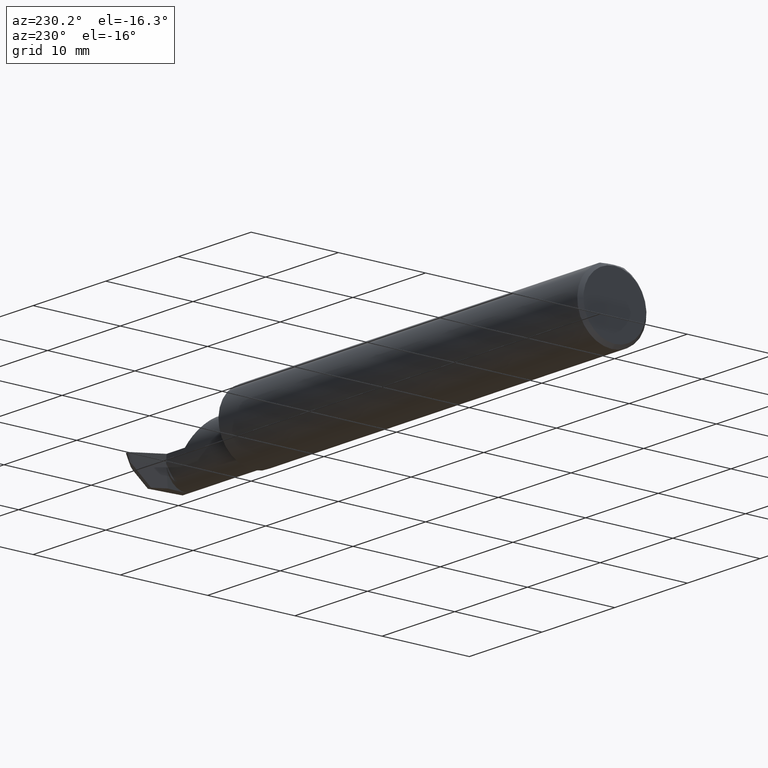
[diagram: clean part render]
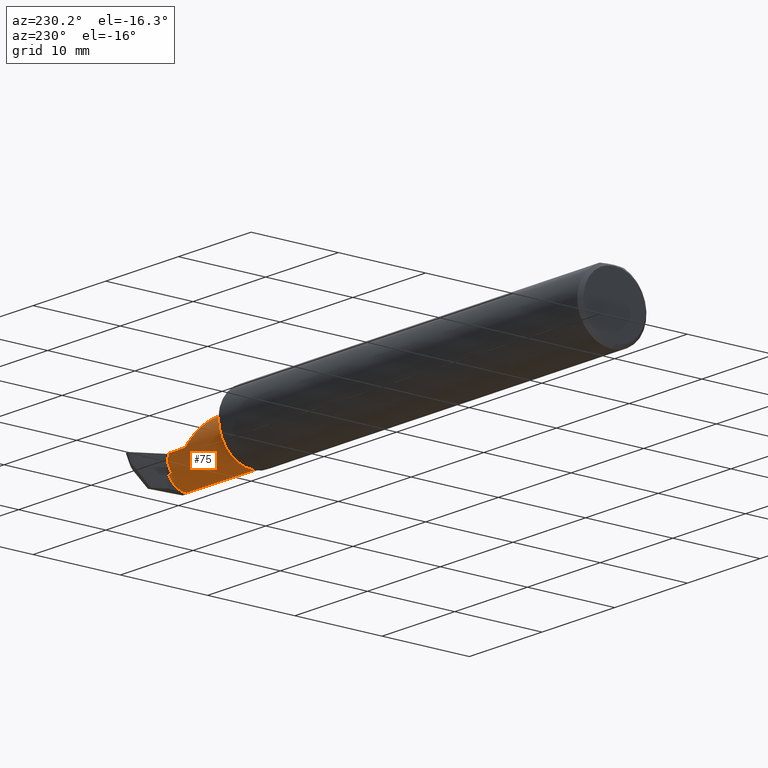
[diagram: same view with one face highlighted and labeled with its STEP entity id]
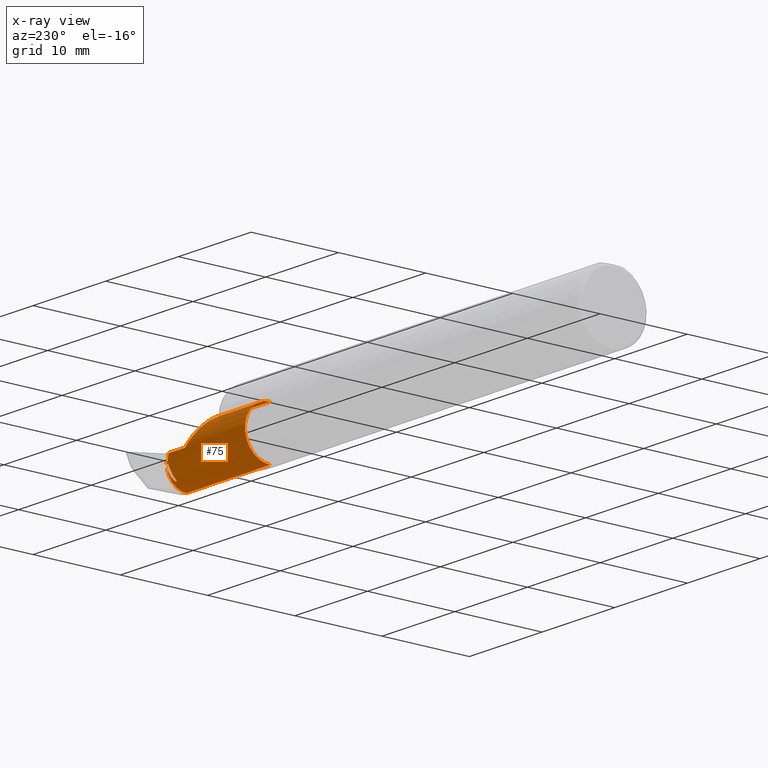
[diagram: x-ray of the same camera — body ghosted, the highlighted face saturated]
A machine part, auxiliary view. The second image highlights one B-rep face of the part: STEP entity #75.
The next image is the same camera in x-ray: the body ghosted, the highlighted face saturated — about 6% of this face is hidden behind the body in this view.
In plain terms, the highlighted cylindrical surface (edge-blend (fillet) strip) has radius 2.8931 mm, axis along (-1, -0, -0).
Its self-contained STEP definition (entity closure, byte-faithful):
#4 = DIRECTION ( 'NONE',  ( -1.000000000000000000, -0.000000000000000000, -0.000000000000000000 ) ) ;
#8 = VERTEX_POINT ( 'NONE', #742 ) ;
#13 = VERTEX_POINT ( 'NONE', #40 ) ;
#14 = EDGE_CURVE ( 'NONE', #277, #147, #582, .T. ) ;
#20 = VERTEX_POINT ( 'NONE', #122 ) ;
#24 =( BOUNDED_CURVE ( )  B_SPLINE_CURVE ( 3, ( #294, #905, #821, #698 ),
 .UNSPECIFIED., .F., .T. ) 
 B_SPLINE_CURVE_WITH_KNOTS ( ( 4, 4 ),
 ( 3.280742988484872225, 4.548410881397165539 ),
 .UNSPECIFIED. ) 
 CURVE ( )  GEOMETRIC_REPRESENTATION_ITEM ( )  RATIONAL_B_SPLINE_CURVE ( ( 1.000000000000000000, 0.8705085504928260498, 0.8705085504928260498, 1.000000000000000000 ) ) 
 REPRESENTATION_ITEM ( '' )  );
#40 = CARTESIAN_POINT ( 'NONE',  ( 1.983566166913449225, -0.09809999999999997888, 0.1139000000000000151 ) ) ;
#73 = EDGE_LOOP ( 'NONE', ( #98, #944, #1014, #709, #921, #668, #902, #93, #972, #239, #549, #178, #634, #945 ) ) ;
#75 = ADVANCED_FACE ( 'NONE', ( #1008 ), #384, .T. ) ;
#78 = EDGE_CURVE ( 'NONE', #716, #977, #471, .T. ) ;
#79 = VECTOR ( 'NONE', #784, 39.37007874015748143 ) ;
#85 = CARTESIAN_POINT ( 'NONE',  ( 2.415843228791619168, -0.02897047008149054512, -0.09052247286307373020 ) ) ;
#93 = ORIENTED_EDGE ( 'NONE', *, *, #949, .F. ) ;
#97 = CARTESIAN_POINT ( 'NONE',  ( 1.983566166913449225, -0.09809999999999997888, 0.000000000000000000 ) ) ;
#98 = ORIENTED_EDGE ( 'NONE', *, *, #104, .F. ) ;
#104 = EDGE_CURVE ( 'NONE', #20, #877, #24, .T. ) ;
#110 = CARTESIAN_POINT ( 'NONE',  ( 2.415526470321595287, 0.01102368895086562606, -0.03266770803711851329 ) ) ;
#112 = EDGE_CURVE ( 'NONE', #20, #153, #846, .T. ) ;
#113 = CARTESIAN_POINT ( 'NONE',  ( 1.958566166913449536, -0.09809999999999997888, 0.1139000000000000012 ) ) ;
#114 = CARTESIAN_POINT ( 'NONE',  ( 2.308999999999999719, 0.01579999999999997379, -3.995833282175376183E-17 ) ) ;
#120 = CARTESIAN_POINT ( 'NONE',  ( 2.415208801950326833, 0.01141582629045493139, -0.03132798159094495744 ) ) ;
#122 = CARTESIAN_POINT ( 'NONE',  ( 2.437510501675157037, -0.09809999999999997888, -0.1138999999999999735 ) ) ;
#144 = DIRECTION ( 'NONE',  ( 0.000000000000000000, 0.000000000000000000, 1.000000000000000000 ) ) ;
#147 = VERTEX_POINT ( 'NONE', #828 ) ;
#153 = VERTEX_POINT ( 'NONE', #231 ) ;
#160 = CARTESIAN_POINT ( 'NONE',  ( 2.414890382895463539, 0.01178324105678900391, -0.02998149691564179140 ) ) ;
#165 =( BOUNDED_CURVE ( )  B_SPLINE_CURVE ( 3, ( #891, #503, #513, #273 ),
 .UNSPECIFIED., .F., .F. ) 
 B_SPLINE_CURVE_WITH_KNOTS ( ( 4, 4 ),
 ( 3.275074073241660777, 3.275355990934010197 ),
 .UNSPECIFIED. ) 
 CURVE ( )  GEOMETRIC_REPRESENTATION_ITEM ( )  RATIONAL_B_SPLINE_CURVE ( ( 1.000000000000000000, 0.9999999933768678462, 0.9999999933768678462, 1.000000000000000000 ) ) 
 REPRESENTATION_ITEM ( '' )  );
#178 = ORIENTED_EDGE ( 'NONE', *, *, #78, .T. ) ;
#180 = AXIS2_PLACEMENT_3D ( 'NONE', #97, #4, #943 ) ;
#183 = EDGE_CURVE ( 'NONE', #716, #877, #754, .T. ) ;
#202 =( BOUNDED_CURVE ( )  B_SPLINE_CURVE ( 3, ( #802, #589, #978, #740 ),
 .UNSPECIFIED., .F., .F. ) 
 B_SPLINE_CURVE_WITH_KNOTS ( ( 4, 4 ),
 ( 2.833855849274379057, 3.449329457905206286 ),
 .UNSPECIFIED. ) 
 CURVE ( )  GEOMETRIC_REPRESENTATION_ITEM ( )  RATIONAL_B_SPLINE_CURVE ( ( 1.000000000000000000, 0.9686810251563953145, 0.9686810251563953145, 1.000000000000000000 ) ) 
 REPRESENTATION_ITEM ( '' )  );
#226 = DIRECTION ( 'NONE',  ( 1.000000000000000000, -0.000000000000000000, 0.000000000000000000 ) ) ;
#231 = CARTESIAN_POINT ( 'NONE',  ( 1.983566166913449225, -0.09809999999999995113, -0.1139000000000000151 ) ) ;
#239 = ORIENTED_EDGE ( 'NONE', *, *, #627, .F. ) ;
#240 = CARTESIAN_POINT ( 'NONE',  ( 1.958566166913449536, 0.01580000000000002236, -3.995833282175376183E-17 ) ) ;
#247 = CIRCLE ( 'NONE', #180, 0.1139000000000000290 ) ;
#273 = CARTESIAN_POINT ( 'NONE',  ( 2.404652148838982040, 0.01175679456555461626, -0.03007814302415522112 ) ) ;
#277 = VERTEX_POINT ( 'NONE', #859 ) ;
#294 = CARTESIAN_POINT ( 'NONE',  ( 2.437510501675157037, -0.09809999999999997888, -0.1138999999999999735 ) ) ;
#301 = VERTEX_POINT ( 'NONE', #85 ) ;
#329 = EDGE_CURVE ( 'NONE', #147, #585, #400, .T. ) ;
#333 = VERTEX_POINT ( 'NONE', #652 ) ;
#337 = CARTESIAN_POINT ( 'NONE',  ( 2.415843228791619168, 0.01060699149548756035, -0.03400000000000000244 ) ) ;
#364 = EDGE_CURVE ( 'NONE', #301, #877, #202, .T. ) ;
#366 = VERTEX_POINT ( 'NONE', #441 ) ;
#378 = DIRECTION ( 'NONE',  ( -1.000000000000000000, -0.000000000000000000, -0.000000000000000000 ) ) ;
#384 = CYLINDRICAL_SURFACE ( 'NONE', #817, 0.1139000000000000012 ) ;
#393 = EDGE_CURVE ( 'NONE', #277, #13, #593, .T. ) ;
#396 = DIRECTION ( 'NONE',  ( -1.000000000000000000, -0.000000000000000000, -0.000000000000000000 ) ) ;
#400 = LINE ( 'NONE', #240, #946 ) ;
#415 =( BOUNDED_CURVE ( )  B_SPLINE_CURVE ( 3, ( #599, #912, #1003, #829 ),
 .UNSPECIFIED., .F., .T. ) 
 B_SPLINE_CURVE_WITH_KNOTS ( ( 4, 4 ),
 ( 4.584294558283676935, 4.851539315279771003 ),
 .UNSPECIFIED. ) 
 CURVE ( )  GEOMETRIC_REPRESENTATION_ITEM ( )  RATIONAL_B_SPLINE_CURVE ( ( 1.000000000000000000, 0.9940572035772393678, 0.9940572035772393678, 1.000000000000000000 ) ) 
 REPRESENTATION_ITEM ( '' )  );
#424 = VECTOR ( 'NONE', #226, 39.37007874015748143 ) ;
#428 = CARTESIAN_POINT ( 'NONE',  ( 2.195100000000000495, -0.09809999999999997888, 0.1139000000000000012 ) ) ;
#435 = DIRECTION ( 'NONE',  ( 1.000000000000000000, 0.000000000000000000, 0.000000000000000000 ) ) ;
#441 = CARTESIAN_POINT ( 'NONE',  ( 2.407933152324074122, 0.01176526976053744560, -0.03004717125528338223 ) ) ;
#443 = CARTESIAN_POINT ( 'NONE',  ( 2.415843228791619168, 0.01060699149548756035, -0.03400000000000000244 ) ) ;
#471 = CIRCLE ( 'NONE', #546, 0.1139000000000000012 ) ;
#498 = DIRECTION ( 'NONE',  ( -1.000000000000000000, -0.000000000000000000, -0.000000000000000000 ) ) ;
#499 = LINE ( 'NONE', #974, #1016 ) ;
#503 = CARTESIAN_POINT ( 'NONE',  ( 2.406840631339830505, 0.01176244615080092662, -0.03005749557642406131 ) ) ;
#513 = CARTESIAN_POINT ( 'NONE',  ( 2.405746963504221902, 0.01175962108578795969, -0.03006781949944966129 ) ) ;
#527 = CARTESIAN_POINT ( 'NONE',  ( 2.405843228791619381, -0.09809999999999997888, 0.000000000000000000 ) ) ;
#546 = AXIS2_PLACEMENT_3D ( 'NONE', #527, #396, #996 ) ;
#548 = EDGE_CURVE ( 'NONE', #8, #585, #415, .T. ) ;
#549 = ORIENTED_EDGE ( 'NONE', *, *, #183, .F. ) ;
#575 = VECTOR ( 'NONE', #498, 39.37007874015748143 ) ;
#582 =( BOUNDED_CURVE ( )  B_SPLINE_CURVE ( 3, ( #428, #892, #820, #114 ),
 .UNSPECIFIED., .F., .T. ) 
 B_SPLINE_CURVE_WITH_KNOTS ( ( 4, 4 ),
 ( 0.000000000000000000, 1.570796326794896780 ),
 .UNSPECIFIED. ) 
 CURVE ( )  GEOMETRIC_REPRESENTATION_ITEM ( )  RATIONAL_B_SPLINE_CURVE ( ( 1.000000000000000000, 0.8047378541243649375, 0.8047378541243649375, 1.000000000000000000 ) ) 
 REPRESENTATION_ITEM ( '' )  );
#585 = VERTEX_POINT ( 'NONE', #981 ) ;
#588 =( BOUNDED_CURVE ( )  B_SPLINE_CURVE ( 3, ( #443, #110, #120, #732 ),
 .UNSPECIFIED., .F., .T. ) 
 B_SPLINE_CURVE_WITH_KNOTS ( ( 4, 4 ),
 ( 4.548410881397165539, 4.585176233137306490 ),
 .UNSPECIFIED. ) 
 CURVE ( )  GEOMETRIC_REPRESENTATION_ITEM ( )  RATIONAL_B_SPLINE_CURVE ( ( 1.000000000000000000, 0.9998873622479106382, 0.9998873622479106382, 1.000000000000000000 ) ) 
 REPRESENTATION_ITEM ( '' )  );
#589 = CARTESIAN_POINT ( 'NONE',  ( 2.420878836853818328, -0.01009980214806243705, -0.07611146129626171486 ) ) ;
#593 = LINE ( 'NONE', #113, #575 ) ;
#599 = CARTESIAN_POINT ( 'NONE',  ( 2.404652148838982040, 0.01175679456555461626, -0.03007814302415522112 ) ) ;
#627 = EDGE_CURVE ( 'NONE', #877, #333, #588, .T. ) ;
#634 = ORIENTED_EDGE ( 'NONE', *, *, #1015, .T. ) ;
#652 = CARTESIAN_POINT ( 'NONE',  ( 2.414890331022167658, 0.01178327100585026613, -0.02998127337280520957 ) ) ;
#668 = ORIENTED_EDGE ( 'NONE', *, *, #329, .T. ) ;
#695 = CARTESIAN_POINT ( 'NONE',  ( 1.958566166913449536, -0.09809999999999997888, 0.000000000000000000 ) ) ;
#698 = CARTESIAN_POINT ( 'NONE',  ( 2.415843228791619168, 0.01060699149548756035, -0.03400000000000000244 ) ) ;
#707 = VECTOR ( 'NONE', #749, 39.37007874015748143 ) ;
#709 = ORIENTED_EDGE ( 'NONE', *, *, #393, .F. ) ;
#716 = VERTEX_POINT ( 'NONE', #992 ) ;
#732 = CARTESIAN_POINT ( 'NONE',  ( 2.414890331022167658, 0.01178327100585026613, -0.02998127337280520957 ) ) ;
#740 = CARTESIAN_POINT ( 'NONE',  ( 2.415843228791619168, 0.01060699149548756035, -0.03400000000000000244 ) ) ;
#742 = CARTESIAN_POINT ( 'NONE',  ( 2.404652148838982040, 0.01175679456555461626, -0.03007814302415522112 ) ) ;
#749 = DIRECTION ( 'NONE',  ( -1.000000000000000000, -0.000000000000000000, -0.000000000000000000 ) ) ;
#754 = LINE ( 'NONE', #917, #424 ) ;
#784 = DIRECTION ( 'NONE',  ( 0.9999521130107005273, 0.002582986933649640895, 0.009439272426194267665 ) ) ;
#802 = CARTESIAN_POINT ( 'NONE',  ( 2.415843228791619168, -0.02897047008149054512, -0.09052247286307373020 ) ) ;
#817 = AXIS2_PLACEMENT_3D ( 'NONE', #695, #378, #144 ) ;
#820 = CARTESIAN_POINT ( 'NONE',  ( 2.242278924754295577, 0.01580000000000005012, 0.06672107524570446146 ) ) ;
#821 = CARTESIAN_POINT ( 'NONE',  ( 2.427565682724233564, -0.004813959123875909130, -0.08330485728916130206 ) ) ;
#828 = CARTESIAN_POINT ( 'NONE',  ( 2.308999999999999719, 0.01579999999999997379, -3.995833282175376183E-17 ) ) ;
#829 = CARTESIAN_POINT ( 'NONE',  ( 2.397672060843371256, 0.01580000000000002236, -3.995833282175376183E-17 ) ) ;
#833 = EDGE_CURVE ( 'NONE', #366, #333, #856, .T. ) ;
#846 = LINE ( 'NONE', #924, #707 ) ;
#856 = LINE ( 'NONE', #160, #79 ) ;
#859 = CARTESIAN_POINT ( 'NONE',  ( 2.195100000000000495, -0.09809999999999997888, 0.1139000000000000012 ) ) ;
#864 = EDGE_CURVE ( 'NONE', #13, #153, #247, .T. ) ;
#877 = VERTEX_POINT ( 'NONE', #337 ) ;
#886 = CARTESIAN_POINT ( 'NONE',  ( 2.405843228791619381, -0.02897047008149045144, -0.09052247286307359142 ) ) ;
#891 = CARTESIAN_POINT ( 'NONE',  ( 2.407933152324074122, 0.01176526976053744560, -0.03004717125528338223 ) ) ;
#892 = CARTESIAN_POINT ( 'NONE',  ( 2.195100000000000495, -0.03137892475429548966, 0.1139000000000000012 ) ) ;
#902 = ORIENTED_EDGE ( 'NONE', *, *, #548, .F. ) ;
#905 = CARTESIAN_POINT ( 'NONE',  ( 2.435862470033701488, -0.04643981542513212629, -0.1139000000000000429 ) ) ;
#912 = CARTESIAN_POINT ( 'NONE',  ( 2.402330683926185095, 0.01444420765730067106, -0.02026269039811926659 ) ) ;
#917 = CARTESIAN_POINT ( 'NONE',  ( 2.415843228791619168, 0.01060699149548756035, -0.03400000000000000244 ) ) ;
#921 = ORIENTED_EDGE ( 'NONE', *, *, #14, .T. ) ;
#924 = CARTESIAN_POINT ( 'NONE',  ( 1.958566166913449536, -0.09809999999999995113, -0.1139000000000000012 ) ) ;
#943 = DIRECTION ( 'NONE',  ( 0.000000000000000000, 0.000000000000000000, 1.000000000000000000 ) ) ;
#944 = ORIENTED_EDGE ( 'NONE', *, *, #112, .T. ) ;
#945 = ORIENTED_EDGE ( 'NONE', *, *, #364, .T. ) ;
#946 = VECTOR ( 'NONE', #435, 39.37007874015748143 ) ;
#949 = EDGE_CURVE ( 'NONE', #366, #8, #165, .T. ) ;
#956 = DIRECTION ( 'NONE',  ( 1.000000000000000000, 0.000000000000000000, 0.000000000000000000 ) ) ;
#972 = ORIENTED_EDGE ( 'NONE', *, *, #833, .T. ) ;
#974 = CARTESIAN_POINT ( 'NONE',  ( 1.958566166913449536, -0.02897047008149045144, -0.09052247286307359142 ) ) ;
#977 = VERTEX_POINT ( 'NONE', #886 ) ;
#978 = CARTESIAN_POINT ( 'NONE',  ( 2.420878836853818328, 0.003519218819336070950, -0.05666148364789252989 ) ) ;
#981 = CARTESIAN_POINT ( 'NONE',  ( 2.397672060843371256, 0.01580000000000002236, -3.995833282175376183E-17 ) ) ;
#992 = CARTESIAN_POINT ( 'NONE',  ( 2.405843228791619381, 0.01060699149548756035, -0.03400000000000000244 ) ) ;
#996 = DIRECTION ( 'NONE',  ( 0.000000000000000000, -4.497115880702803228E-15, -1.000000000000000000 ) ) ;
#1003 = CARTESIAN_POINT ( 'NONE',  ( 2.399990078184218056, 0.01580000000000001889, -0.01017670375807641636 ) ) ;
#1008 = FACE_OUTER_BOUND ( 'NONE', #73, .T. ) ;
#1014 = ORIENTED_EDGE ( 'NONE', *, *, #864, .F. ) ;
#1015 = EDGE_CURVE ( 'NONE', #977, #301, #499, .T. ) ;
#1016 = VECTOR ( 'NONE', #956, 39.37007874015748143 ) ;